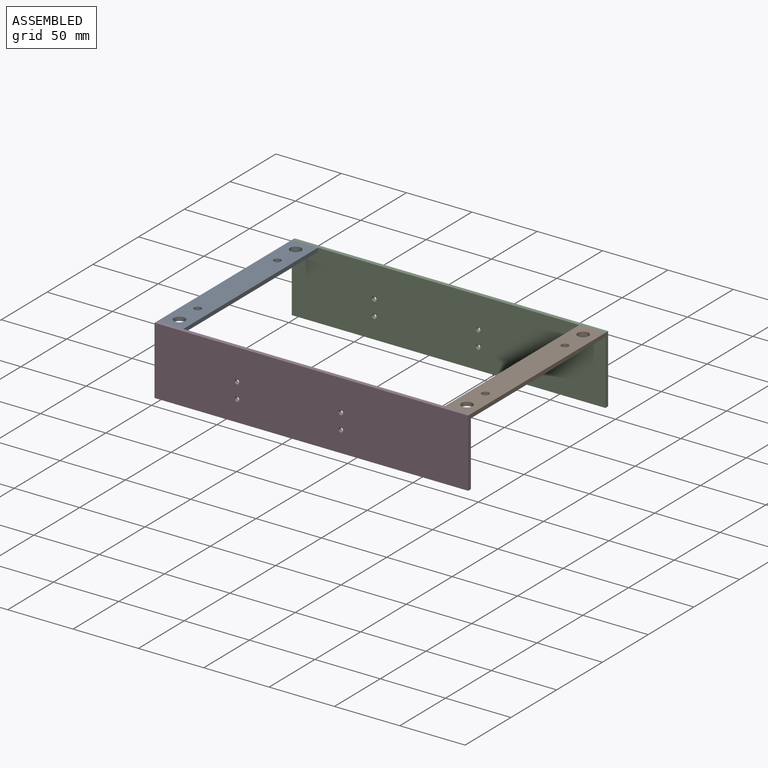
[diagram: assembled view]
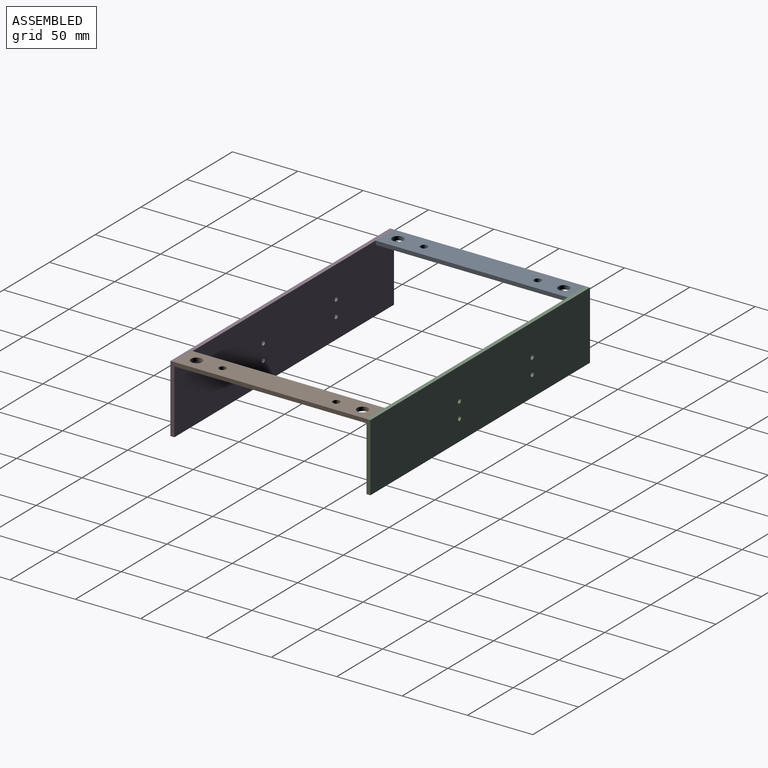
[diagram: assembled view, second angle]
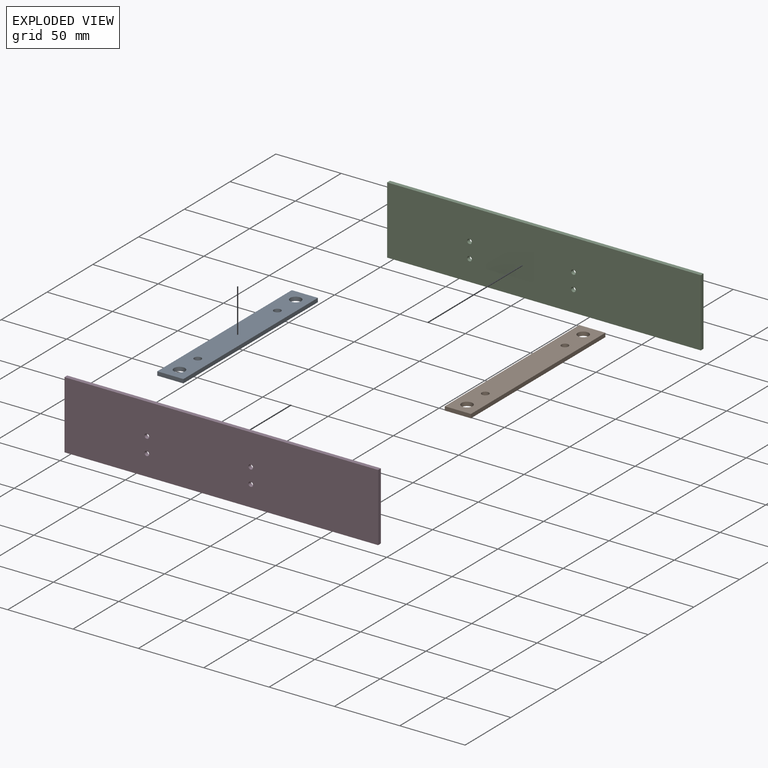
[diagram: exploded view]
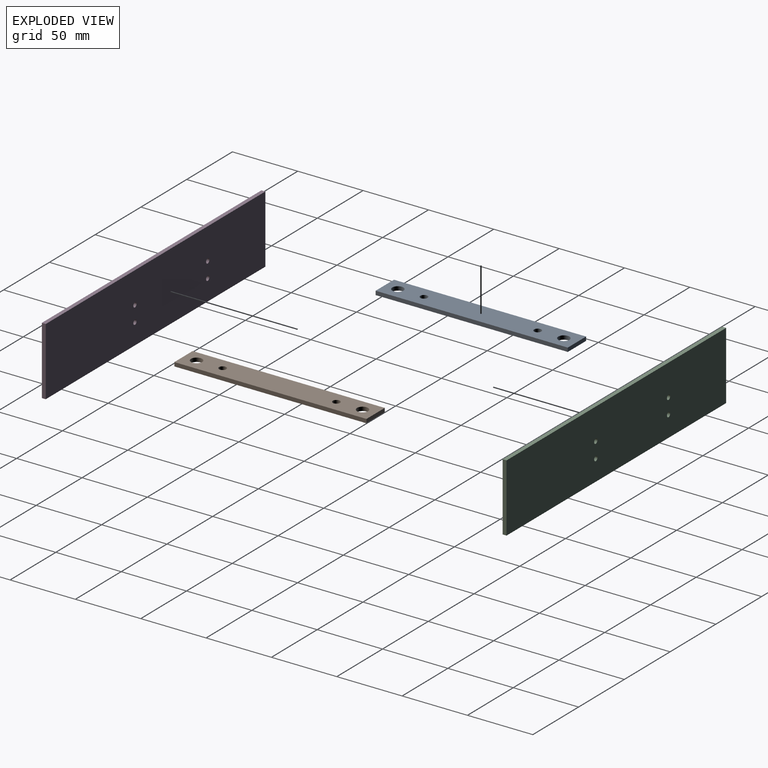
[diagram: exploded view, second angle]
ASSEMBLY  parts=4 mates=3
PART A: 10 faces, bbox 147x20x3 mm
  f0: plane 147x3mm, normal (0,1,0), area 441mm2, adj f1,f7,f8,f9
  f1: plane 20x3mm, normal (-1,0,0), area 60mm2, adj f0,f2,f8,f9
  f2: plane 147x3mm, normal (0,-1,0), area 441mm2, adj f1,f7,f8,f9
  f3: cylinder r=4.25mm len=8.5mm, axis (0,0,-1), area 80.1mm2, adj f8,f9
  f4: cylinder r=4.25mm len=8.5mm, axis (0,0,-1), area 80.1mm2, adj f8,f9
  f5: cylinder r=2.75mm len=5.5mm, axis (0,0,-1), area 51.8mm2, adj f8,f9
  f6: cylinder r=2.75mm len=5.5mm, axis (0,0,-1), area 51.8mm2, adj f8,f9
  f7: plane 20x3mm, normal (1,0,0), area 60mm2, adj f0,f2,f8,f9
  f8: plane 147x20mm, normal (0,0,1), area 2779mm2, adj f0,f1,f2,f3,f4,f5,f6,f7
  f9: plane 147x20mm, normal (0,0,-1), area 2779mm2, adj f0,f1,f2,f3,f4,f5,f6,f7
PART B: same geometry as A
PART C: 10 faces, bbox 240x52x3 mm
  f0: plane 240x3mm, normal (0,1,0), area 720mm2, adj f1,f7,f8,f9
  f1: plane 52x3mm, normal (-1,0,0), area 156mm2, adj f0,f2,f8,f9
  f2: plane 240x3mm, normal (0,-1,0), area 720mm2, adj f1,f7,f8,f9
  f3: cylinder r=1.75mm len=3.5mm, axis (0,0,-1), area 33mm2, adj f8,f9
  f4: cylinder r=1.75mm len=3.5mm, axis (0,0,-1), area 33mm2, adj f8,f9
  f5: cylinder r=1.75mm len=3.5mm, axis (0,0,-1), area 33mm2, adj f8,f9
  f6: cylinder r=1.75mm len=3.5mm, axis (0,0,-1), area 33mm2, adj f8,f9
  f7: plane 52x3mm, normal (1,0,0), area 156mm2, adj f0,f2,f8,f9
  f8: plane 240x52mm, normal (0,0,1), area 12441.5mm2, adj f0,f1,f2,f3,f4,f5,f6,f7
  f9: plane 240x52mm, normal (0,0,-1), area 12441.5mm2, adj f0,f1,f2,f3,f4,f5,f6,f7
PART D: same geometry as C
PLACE A rot(axis=(0,0,1),90deg) t=(-153.55,27.7,-0.1)mm
PLACE B rot(axis=(0,0,1),90deg) t=(66.45,27.7,-0.1)mm
PLACE C rot(axis=(1,0,0),90deg) t=(-43.55,104.2,-23.1)mm
PLACE D rot(axis=(1,0,0),90deg) t=(-43.55,-45.8,-23.1)mm
MATE fastened B.f8 <-> C.f0  axis (0,0,1) through (76.45,101.2,2.9)mm
MATE fastened D.f0 <-> A.f8  axis (0,0,1) through (-163.55,-45.8,2.9)mm
MATE fastened B.f8 <-> D.f0  axis (0,0,1) through (76.45,-45.8,2.9)mm
